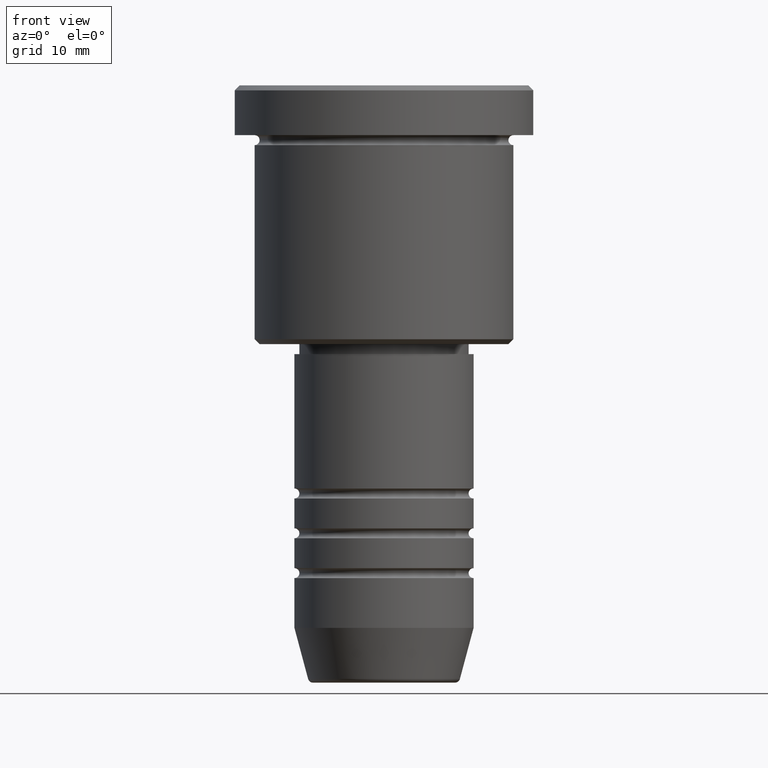
[diagram: clean part render]
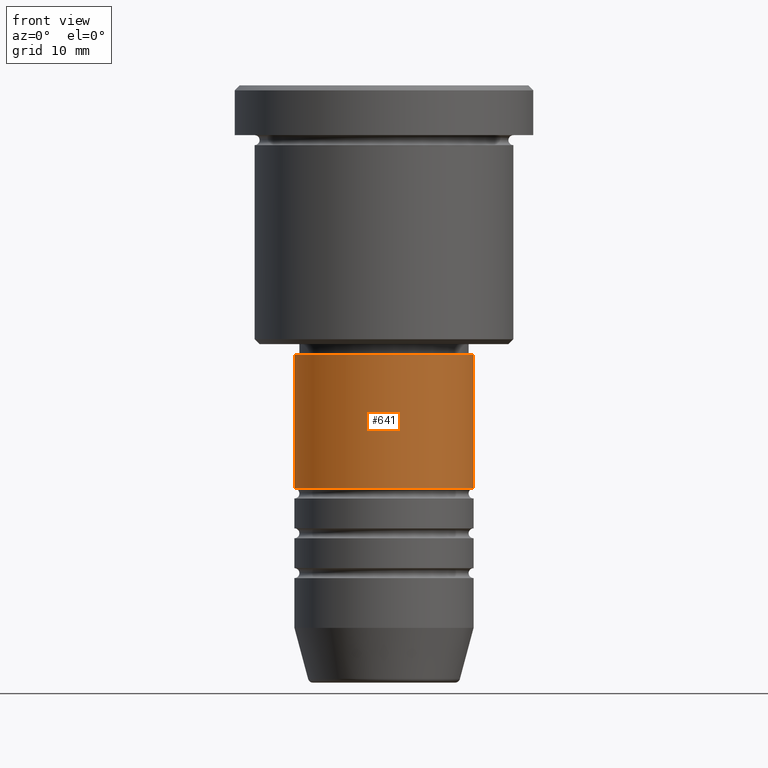
[diagram: same view with one face highlighted and labeled with its STEP entity id]
A machine part, front view. The second image highlights one B-rep face of the part: STEP entity #641.
In plain terms, the highlighted cylindrical surface (partial cylindrical patch) has radius 9 mm, axis along (-0, -0, 1).
Its self-contained STEP definition (entity closure, byte-faithful):
#72 = DIRECTION ( 'NONE',  ( -0.000000000000000000, -0.000000000000000000, 1.000000000000000000 ) ) ;
#84 = LINE ( 'NONE', #718, #1068 ) ;
#130 = DIRECTION ( 'NONE',  ( -0.000000000000000000, -0.000000000000000000, 1.000000000000000000 ) ) ;
#159 = VERTEX_POINT ( 'NONE', #316 ) ;
#172 = AXIS2_PLACEMENT_3D ( 'NONE', #242, #684, #606 ) ;
#242 = CARTESIAN_POINT ( 'NONE',  ( 0.000000000000000000, 0.000000000000000000, 0.000000000000000000 ) ) ;
#281 = ORIENTED_EDGE ( 'NONE', *, *, #975, .F. ) ;
#292 = DIRECTION ( 'NONE',  ( 1.000000000000000000, 0.000000000000000000, 0.000000000000000000 ) ) ;
#303 = EDGE_CURVE ( 'NONE', #638, #920, #388, .T. ) ;
#316 = CARTESIAN_POINT ( 'NONE',  ( -8.999999999999998224, 1.102182119232617714E-15, -27.00000000000001776 ) ) ;
#388 = LINE ( 'NONE', #479, #871 ) ;
#399 = CARTESIAN_POINT ( 'NONE',  ( 8.999999999999998224, 0.000000000000000000, -27.00000000000001776 ) ) ;
#416 = EDGE_LOOP ( 'NONE', ( #448, #577, #1058, #281 ) ) ;
#419 = DIRECTION ( 'NONE',  ( 1.000000000000000000, 0.000000000000000000, 0.000000000000000000 ) ) ;
#432 = FACE_OUTER_BOUND ( 'NONE', #416, .T. ) ;
#439 = CARTESIAN_POINT ( 'NONE',  ( 9.000000000000001776, 0.000000000000000000, -40.49999999999999289 ) ) ;
#448 = ORIENTED_EDGE ( 'NONE', *, *, #804, .F. ) ;
#479 = CARTESIAN_POINT ( 'NONE',  ( 9.000000000000000000, 0.000000000000000000, 0.000000000000000000 ) ) ;
#507 = CIRCLE ( 'NONE', #970, 9.000000000000001776 ) ;
#522 = VERTEX_POINT ( 'NONE', #691 ) ;
#524 = CARTESIAN_POINT ( 'NONE',  ( 0.000000000000000000, 0.000000000000000000, -40.49999999999999289 ) ) ;
#577 = ORIENTED_EDGE ( 'NONE', *, *, #629, .T. ) ;
#606 = DIRECTION ( 'NONE',  ( 1.000000000000000000, 0.000000000000000000, 0.000000000000000000 ) ) ;
#629 = EDGE_CURVE ( 'NONE', #522, #638, #507, .T. ) ;
#638 = VERTEX_POINT ( 'NONE', #439 ) ;
#641 = ADVANCED_FACE ( 'NONE', ( #432 ), #792, .T. ) ;
#684 = DIRECTION ( 'NONE',  ( -0.000000000000000000, -0.000000000000000000, 1.000000000000000000 ) ) ;
#691 = CARTESIAN_POINT ( 'NONE',  ( -9.000000000000001776, 1.102182119232617911E-15, -40.49999999999999289 ) ) ;
#718 = CARTESIAN_POINT ( 'NONE',  ( -9.000000000000000000, 1.102182119232617714E-15, 0.000000000000000000 ) ) ;
#792 = CYLINDRICAL_SURFACE ( 'NONE', #172, 9.000000000000000000 ) ;
#804 = EDGE_CURVE ( 'NONE', #522, #159, #84, .T. ) ;
#825 = CARTESIAN_POINT ( 'NONE',  ( 0.000000000000000000, 0.000000000000000000, -27.00000000000001776 ) ) ;
#871 = VECTOR ( 'NONE', #130, 1000.000000000000000 ) ;
#914 = DIRECTION ( 'NONE',  ( -0.000000000000000000, -0.000000000000000000, 1.000000000000000000 ) ) ;
#920 = VERTEX_POINT ( 'NONE', #399 ) ;
#970 = AXIS2_PLACEMENT_3D ( 'NONE', #524, #72, #419 ) ;
#972 = CIRCLE ( 'NONE', #1069, 8.999999999999998224 ) ;
#975 = EDGE_CURVE ( 'NONE', #159, #920, #972, .T. ) ;
#1058 = ORIENTED_EDGE ( 'NONE', *, *, #303, .T. ) ;
#1068 = VECTOR ( 'NONE', #1169, 1000.000000000000000 ) ;
#1069 = AXIS2_PLACEMENT_3D ( 'NONE', #825, #914, #292 ) ;
#1169 = DIRECTION ( 'NONE',  ( -0.000000000000000000, -0.000000000000000000, 1.000000000000000000 ) ) ;